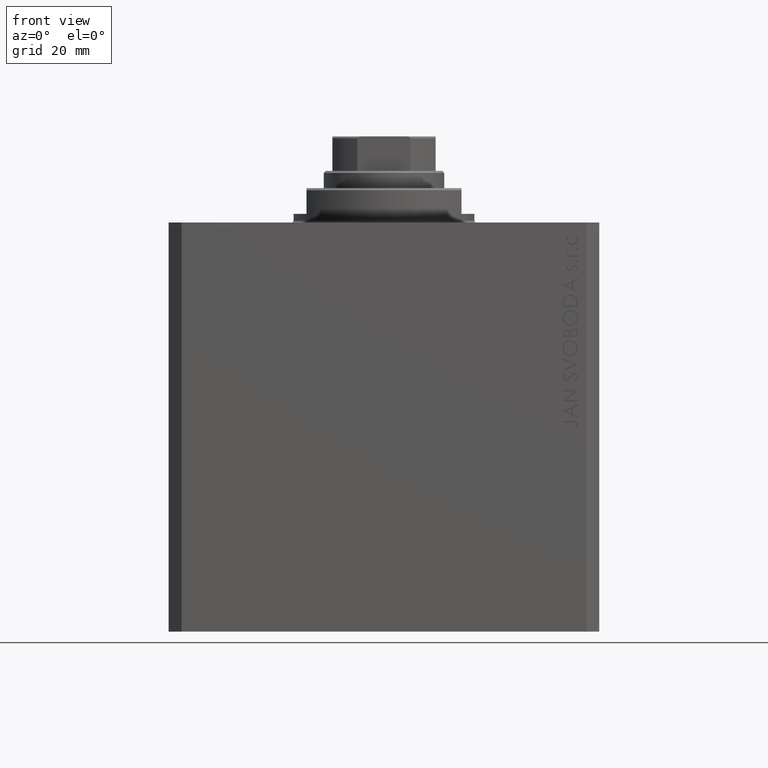
[diagram: clean part render]
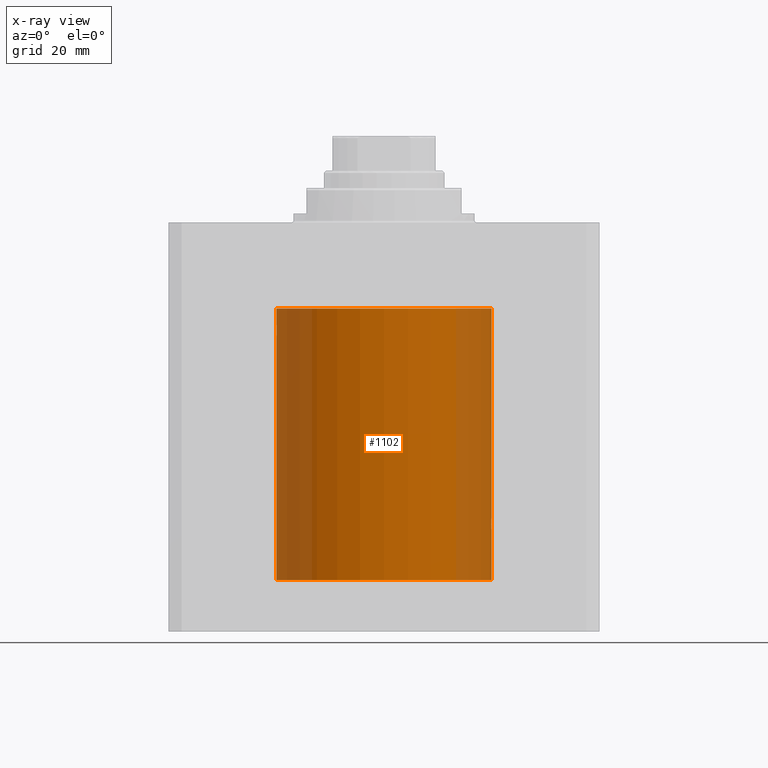
[diagram: x-ray — body ghosted, one internal face saturated and labeled with its STEP entity id]
A machine part, front view, then the same camera in x-ray: the body is ghosted and one INTERNAL B-rep face — a face not visible from any outside direction — is saturated and labeled: STEP entity #1102.
In plain terms, the highlighted cylindrical surface (partial cylindrical patch) has radius 25 mm, axis along (0, 0, 1).
Its self-contained STEP definition (entity closure, byte-faithful):
#35 = LINE ( 'NONE', #20494, #41435 ) ;
#680 = EDGE_CURVE ( 'NONE', #3348, #31724, #41924, .T. ) ;
#1102 = ADVANCED_FACE ( 'NONE', ( #16697 ), #23231, .F. ) ;
#1610 = CARTESIAN_POINT ( 'NONE',  ( -24.92495096138290123, -1.935839357546898176, -25.51914869203350023 ) ) ;
#2095 = EDGE_CURVE ( 'NONE', #41012, #10154, #27615, .T. ) ;
#2834 = CARTESIAN_POINT ( 'NONE',  ( 24.92492416753309215, -1.936183311074788804, -69.48211983704001682 ) ) ;
#3348 = VERTEX_POINT ( 'NONE', #23681 ) ;
#4058 = CARTESIAN_POINT ( 'NONE',  ( 24.91987158875425834, -1.999999999999617195, -70.00000000000000000 ) ) ;
#4171 = CARTESIAN_POINT ( 'NONE',  ( 24.92791051474612374, -1.897843333548509426, -70.64449593272929917 ) ) ;
#4444 = AXIS2_PLACEMENT_3D ( 'NONE', #17160, #37404, #12934 ) ;
#4693 = VERTEX_POINT ( 'NONE', #26090 ) ;
#4984 = CARTESIAN_POINT ( 'NONE',  ( -24.92795701759795080, -1.897234155609171635, -25.64626509918302233 ) ) ;
#5778 = CARTESIAN_POINT ( 'NONE',  ( 25.00000000000000000, 0.000000000000000000, -83.09999999999999432 ) ) ;
#6049 = CARTESIAN_POINT ( 'NONE',  ( -24.92093693499324658, -1.986845924489293758, -25.26350076851495530 ) ) ;
#6160 = EDGE_CURVE ( 'NONE', #15005, #26634, #35, .T. ) ;
#6213 = CARTESIAN_POINT ( 'NONE',  ( 24.93977429142936586, -1.735787185333330429, -68.99793003344203157 ) ) ;
#6802 = CARTESIAN_POINT ( 'NONE',  ( -25.00000000000000000, 3.061616997868383043E-15, -20.00000000000000355 ) ) ;
#7305 = CARTESIAN_POINT ( 'NONE',  ( 24.91987158875425834, -1.999999999999617195, -70.00000000000000000 ) ) ;
#8046 = CIRCLE ( 'NONE', #4444, 25.00000000000000000 ) ;
#8204 = CARTESIAN_POINT ( 'NONE',  ( 25.00000000000000000, 0.000000000000000000, -20.00000000000000355 ) ) ;
#8446 = CARTESIAN_POINT ( 'NONE',  ( 24.92492036309734615, -1.936231817240110509, -70.51765847102743123 ) ) ;
#8810 = CARTESIAN_POINT ( 'NONE',  ( -24.95480050877426237, -1.505479482841795225, -26.32307489983280391 ) ) ;
#9588 = CARTESIAN_POINT ( 'NONE',  ( 24.99565873106722336, -0.5244817804283464779, -68.05247684620839266 ) ) ;
#9795 = CARTESIAN_POINT ( 'NONE',  ( 24.97044365941620825, -1.229268089636794459, -68.40095226892670155 ) ) ;
#9801 = EDGE_CURVE ( 'NONE', #31724, #26634, #37786, .T. ) ;
#10010 = CARTESIAN_POINT ( 'NONE',  ( 25.00000000000000000, -1.072061970195355044E-23, -68.00000000000000000 ) ) ;
#10090 = CARTESIAN_POINT ( 'NONE',  ( 25.00000000000000000, 3.613683980139323145E-15, -72.00000000000001421 ) ) ;
#10154 = VERTEX_POINT ( 'NONE', #8204 ) ;
#11287 = DIRECTION ( 'NONE',  ( 0.000000000000000000, 0.000000000000000000, 1.000000000000000000 ) ) ;
#11364 = CARTESIAN_POINT ( 'NONE',  ( 24.93975241175589730, -1.736094255790495477, -71.00150820621502135 ) ) ;
#11443 = CARTESIAN_POINT ( 'NONE',  ( -25.00000000000000000, 3.061616997868383043E-15, -83.09999999999999432 ) ) ;
#11581 = VERTEX_POINT ( 'NONE', #28770 ) ;
#12182 = CARTESIAN_POINT ( 'NONE',  ( -25.00000000000000000, 3.061616987151861079E-15, -26.99999999999999645 ) ) ;
#12686 = ORIENTED_EDGE ( 'NONE', *, *, #9801, .T. ) ;
#12934 = DIRECTION ( 'NONE',  ( 1.000000000000000000, 0.000000000000000000, 0.000000000000000000 ) ) ;
#13224 = CARTESIAN_POINT ( 'NONE',  ( -24.91986321344701949, -2.000104355823311142, -24.86956429498368948 ) ) ;
#13767 = DIRECTION ( 'NONE',  ( -0.000000000000000000, -0.000000000000000000, 1.000000000000000000 ) ) ;
#13986 = ORIENTED_EDGE ( 'NONE', *, *, #6160, .F. ) ;
#13993 = ORIENTED_EDGE ( 'NONE', *, *, #29547, .F. ) ;
#14130 = EDGE_LOOP ( 'NONE', ( #35696, #40921, #18852, #23593, #28805, #13993, #40964, #12686, #13986 ) ) ;
#14957 = CARTESIAN_POINT ( 'NONE',  ( 24.91987158875425834, -1.999999999999617195, -70.00000000000000000 ) ) ;
#15005 = VERTEX_POINT ( 'NONE', #40094 ) ;
#15290 = VECTOR ( 'NONE', #31914, 1000.000000000000000 ) ;
#15324 = CARTESIAN_POINT ( 'NONE',  ( -24.93971574801464186, -1.736620042018703014, -23.99939587641725680 ) ) ;
#15408 = CARTESIAN_POINT ( 'NONE',  ( 24.91987158875425834, -1.999999999999617195, -70.13197722058535533 ) ) ;
#15758 = CARTESIAN_POINT ( 'NONE',  ( -25.00000000000000000, 3.061616997868383043E-15, -83.09999999999999432 ) ) ;
#16325 = DIRECTION ( 'NONE',  ( -0.000000000000000000, -0.000000000000000000, 1.000000000000000000 ) ) ;
#16591 = CARTESIAN_POINT ( 'NONE',  ( -24.97046963978398182, -1.228736583868482501, -26.59943398199606790 ) ) ;
#16697 = FACE_OUTER_BOUND ( 'NONE', #14130, .T. ) ;
#16804 = CARTESIAN_POINT ( 'NONE',  ( -24.94938131353800514, -1.591742075146486357, -23.78204476737436224 ) ) ;
#17160 = CARTESIAN_POINT ( 'NONE',  ( 0.000000000000000000, 0.000000000000000000, -83.09999999999999432 ) ) ;
#17885 = CARTESIAN_POINT ( 'NONE',  ( 24.93534824074299294, -1.797481588990658352, -70.88670415767539623 ) ) ;
#18110 = VECTOR ( 'NONE', #42737, 1000.000000000000000 ) ;
#18114 = CARTESIAN_POINT ( 'NONE',  ( 24.94941743214358354, -1.591176741070260636, -71.21868721613955699 ) ) ;
#18190 = LINE ( 'NONE', #11443, #15290 ) ;
#18694 = CARTESIAN_POINT ( 'NONE',  ( -24.92090786805108138, -1.987208077547967022, -24.73926152416091284 ) ) ;
#18852 = ORIENTED_EDGE ( 'NONE', *, *, #29214, .T. ) ;
#19068 = EDGE_CURVE ( 'NONE', #36438, #15005, #8046, .T. ) ;
#19755 = CARTESIAN_POINT ( 'NONE',  ( -24.93981099352738440, -1.735260612996476270, -26.00297372666793549 ) ) ;
#19917 = CARTESIAN_POINT ( 'NONE',  ( 24.93536577148885769, -1.797238994522901923, -69.11280922950381012 ) ) ;
#20178 = CARTESIAN_POINT ( 'NONE',  ( -24.94949580432319536, -1.589956256613760166, -26.22029701034535165 ) ) ;
#20494 = CARTESIAN_POINT ( 'NONE',  ( 25.00000000000000000, 0.000000000000000000, -83.09999999999999432 ) ) ;
#21002 = CARTESIAN_POINT ( 'NONE',  ( 24.91987158875426189, -1.999999999999617639, -69.86789023613141580 ) ) ;
#21252 = CARTESIAN_POINT ( 'NONE',  ( 24.92092324733700437, -1.987016169329289594, -70.26216537823158603 ) ) ;
#21909 = B_SPLINE_CURVE_WITH_KNOTS ( 'NONE', 3,
 ( #12182, #33687, #40427, #39603, #16591, #8810, #20178, #19755, #30091, #4984, #1610, #6049, #26707, #13224, #18694, #23547, #22288, #43797, #15324, #16804, #37263, #36005, #33906, #29033, #42969, #30312 ),
 .UNSPECIFIED., .F., .F.,
 ( 4, 2, 2, 2, 2, 2, 2, 2, 2, 2, 2, 2, 4 ),
 ( 0.006255409813122695013, 0.007037155138578271053, 0.007818900464033846226, 0.008209773126761635981, 0.008600645789489422266, 0.008991518452217212021, 0.009382391114944998306, 0.009773263777672786326, 0.01016413644040057435, 0.01055500910312836410, 0.01094588176585615039, 0.01172762709131173510, 0.01250937241676731981 ),
 .UNSPECIFIED. ) ;
#22223 = CARTESIAN_POINT ( 'NONE',  ( -25.00000000000000000, 3.061616997868383043E-15, -83.09999999999999432 ) ) ;
#22288 = CARTESIAN_POINT ( 'NONE',  ( -24.92787919218595150, -1.898253564863038312, -24.35669801685577696 ) ) ;
#22607 = AXIS2_PLACEMENT_3D ( 'NONE', #42082, #11287, #24990 ) ;
#22705 = AXIS2_PLACEMENT_3D ( 'NONE', #33583, #30420, #30857 ) ;
#23231 = CYLINDRICAL_SURFACE ( 'NONE', #22705, 25.00000000000000000 ) ;
#23547 = CARTESIAN_POINT ( 'NONE',  ( -24.92489366288833352, -1.936574502845382462, -24.48360897453195761 ) ) ;
#23593 = ORIENTED_EDGE ( 'NONE', *, *, #25367, .T. ) ;
#23681 = CARTESIAN_POINT ( 'NONE',  ( 25.00000000000000000, -1.072061970195355044E-23, -68.00000000000000000 ) ) ;
#24869 = EDGE_CURVE ( 'NONE', #36438, #4693, #29022, .T. ) ;
#24990 = DIRECTION ( 'NONE',  ( 1.000000000000000000, 0.000000000000000000, 0.000000000000000000 ) ) ;
#25367 = EDGE_CURVE ( 'NONE', #11581, #41012, #18190, .T. ) ;
#26090 = CARTESIAN_POINT ( 'NONE',  ( -25.00000000000000000, 3.061616987151861079E-15, -26.99999999999999645 ) ) ;
#26446 = VECTOR ( 'NONE', #16325, 1000.000000000000000 ) ;
#26634 = VERTEX_POINT ( 'NONE', #10090 ) ;
#26657 = CARTESIAN_POINT ( 'NONE',  ( 25.00000000000000000, -0.2611828738978722031, -68.00000000000002842 ) ) ;
#26707 = CARTESIAN_POINT ( 'NONE',  ( -24.91988006556351820, -1.999894379466948591, -25.13361653454192179 ) ) ;
#27615 = CIRCLE ( 'NONE', #22607, 25.00000000000000000 ) ;
#28668 = CARTESIAN_POINT ( 'NONE',  ( 25.00000000000000000, -0.2642091141341225691, -71.99999999999995737 ) ) ;
#28770 = CARTESIAN_POINT ( 'NONE',  ( -25.00000000000000000, -9.880247245846597702E-15, -23.00000000000000000 ) ) ;
#28805 = ORIENTED_EDGE ( 'NONE', *, *, #2095, .T. ) ;
#28893 = CARTESIAN_POINT ( 'NONE',  ( 24.97038992199981067, -1.230329354316970658, -71.59821141364186303 ) ) ;
#29022 = LINE ( 'NONE', #15758, #18110 ) ;
#29033 = CARTESIAN_POINT ( 'NONE',  ( -24.99560404420804005, -0.5269598695663408883, -23.05316726981733666 ) ) ;
#29214 = EDGE_CURVE ( 'NONE', #4693, #11581, #21909, .T. ) ;
#29547 = EDGE_CURVE ( 'NONE', #3348, #10154, #36568, .T. ) ;
#30091 = CARTESIAN_POINT ( 'NONE',  ( -24.93540165847409185, -1.796742230535198992, -25.88818544045907544 ) ) ;
#30312 = CARTESIAN_POINT ( 'NONE',  ( -25.00000000000000000, -9.880247245846597702E-15, -23.00000000000000000 ) ) ;
#30420 = DIRECTION ( 'NONE',  ( -0.000000000000000000, -0.000000000000000000, 1.000000000000000000 ) ) ;
#30691 = CARTESIAN_POINT ( 'NONE',  ( 24.98090984630898959, -1.006071462949136519, -68.25193026912691607 ) ) ;
#30857 = DIRECTION ( 'NONE',  ( 1.000000000000000000, 0.000000000000000000, 0.000000000000000000 ) ) ;
#31607 = CARTESIAN_POINT ( 'NONE',  ( 24.99560856256381314, -0.5266991108598200189, -71.94688576662107948 ) ) ;
#31724 = VERTEX_POINT ( 'NONE', #4058 ) ;
#31840 = CARTESIAN_POINT ( 'NONE',  ( 24.95471987711457018, -1.506810090536970348, -71.32156001065118289 ) ) ;
#31914 = DIRECTION ( 'NONE',  ( -0.000000000000000000, -0.000000000000000000, 1.000000000000000000 ) ) ;
#33583 = CARTESIAN_POINT ( 'NONE',  ( 0.000000000000000000, 0.000000000000000000, -83.09999999999999432 ) ) ;
#33639 = CARTESIAN_POINT ( 'NONE',  ( 24.92792568664172137, -1.897644624959951454, -69.35492609411957687 ) ) ;
#33687 = CARTESIAN_POINT ( 'NONE',  ( -24.99999999999999645, -0.2610518539239896629, -26.99999999999999289 ) ) ;
#33906 = CARTESIAN_POINT ( 'NONE',  ( -24.98082890368473841, -1.008015636680443139, -23.25307445503491266 ) ) ;
#34969 = CARTESIAN_POINT ( 'NONE',  ( 24.98084662756578922, -1.007552051423933115, -71.74717343309792739 ) ) ;
#35696 = ORIENTED_EDGE ( 'NONE', *, *, #19068, .F. ) ;
#36005 = CARTESIAN_POINT ( 'NONE',  ( -24.97036395299911860, -1.230860024985119594, -23.40217483282958355 ) ) ;
#36438 = VERTEX_POINT ( 'NONE', #22223 ) ;
#36568 = LINE ( 'NONE', #5778, #26446 ) ;
#37003 = CARTESIAN_POINT ( 'NONE',  ( 24.94945961177561955, -1.590523165686661855, -68.78043555723404268 ) ) ;
#37210 = CARTESIAN_POINT ( 'NONE',  ( 24.95476631310972593, -1.506046946198441372, -68.67756436207359627 ) ) ;
#37263 = CARTESIAN_POINT ( 'NONE',  ( -24.95468564925999999, -1.507377601400332834, -23.67908055382473265 ) ) ;
#37404 = DIRECTION ( 'NONE',  ( 0.000000000000000000, 0.000000000000000000, 1.000000000000000000 ) ) ;
#37786 = B_SPLINE_CURVE_WITH_KNOTS ( 'NONE', 3,
 ( #14957, #15408, #21252, #8446, #4171, #17885, #11364, #18114, #31840, #28893, #34969, #31607, #28668, #38789 ),
 .UNSPECIFIED., .F., .F.,
 ( 4, 2, 2, 2, 2, 2, 4 ),
 ( 0.009383960523484150343, 0.009774637010144549346, 0.01016531349680494661, 0.01055598998346534562, 0.01094666647012574462, 0.01172801944344654089, 0.01250937241676733716 ),
 .UNSPECIFIED. ) ;
#37866 = CARTESIAN_POINT ( 'NONE',  ( 24.92092149243353916, -1.987038635589096103, -69.73792531990252996 ) ) ;
#38789 = CARTESIAN_POINT ( 'NONE',  ( 25.00000000000000000, 3.613683980139323145E-15, -72.00000000000001421 ) ) ;
#39603 = CARTESIAN_POINT ( 'NONE',  ( -24.98092752883252743, -1.005608082442160489, -26.74831689659914602 ) ) ;
#40094 = CARTESIAN_POINT ( 'NONE',  ( 25.00000000000000000, 0.000000000000000000, -83.09999999999999432 ) ) ;
#40427 = CARTESIAN_POINT ( 'NONE',  ( -24.99566324012141294, -0.5242203760814408975, -26.94757607905521724 ) ) ;
#40921 = ORIENTED_EDGE ( 'NONE', *, *, #24869, .T. ) ;
#40964 = ORIENTED_EDGE ( 'NONE', *, *, #680, .T. ) ;
#41012 = VERTEX_POINT ( 'NONE', #6802 ) ;
#41435 = VECTOR ( 'NONE', #13767, 1000.000000000000000 ) ;
#41924 = B_SPLINE_CURVE_WITH_KNOTS ( 'NONE', 3,
 ( #10010, #26657, #9588, #30691, #9795, #37210, #37003, #6213, #19917, #33639, #2834, #37866, #21002, #7305 ),
 .UNSPECIFIED., .F., .F.,
 ( 4, 2, 2, 2, 2, 2, 4 ),
 ( 0.006255409813123470435, 0.007037547490713640629, 0.007819685168303809955, 0.008210754007098895052, 0.008601822845893980149, 0.008992891684689065246, 0.009383960523484150343 ),
 .UNSPECIFIED. ) ;
#42082 = CARTESIAN_POINT ( 'NONE',  ( 0.000000000000000000, 0.000000000000000000, -20.00000000000000355 ) ) ;
#42737 = DIRECTION ( 'NONE',  ( -0.000000000000000000, -0.000000000000000000, 1.000000000000000000 ) ) ;
#42969 = CARTESIAN_POINT ( 'NONE',  ( -25.00000000000000355, -0.2643417853000447071, -23.00000000000000355 ) ) ;
#43797 = CARTESIAN_POINT ( 'NONE',  ( -24.93531237404823386, -1.797977871212388834, -24.11429146291621706 ) ) ;